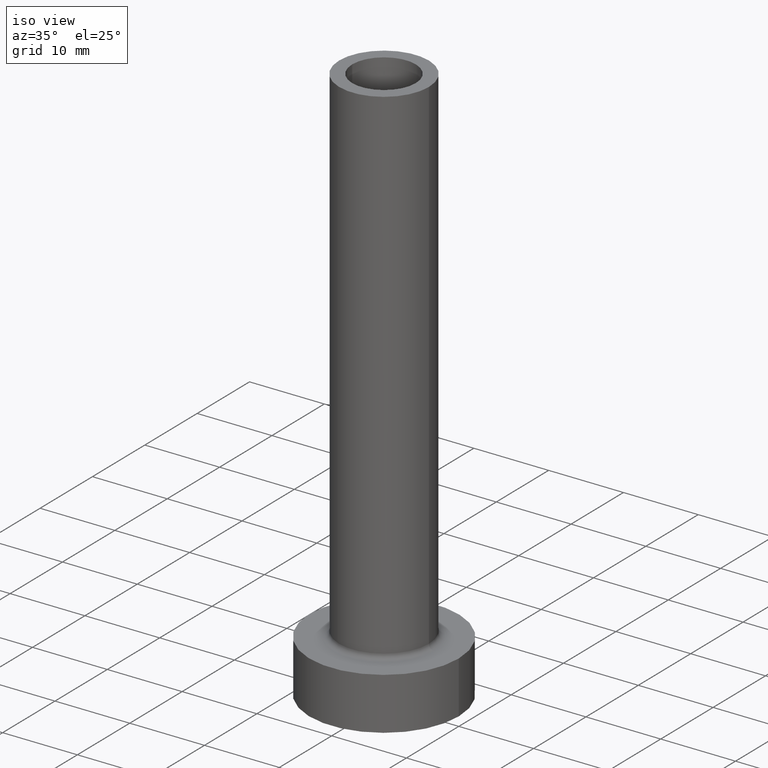
[diagram: clean part render]
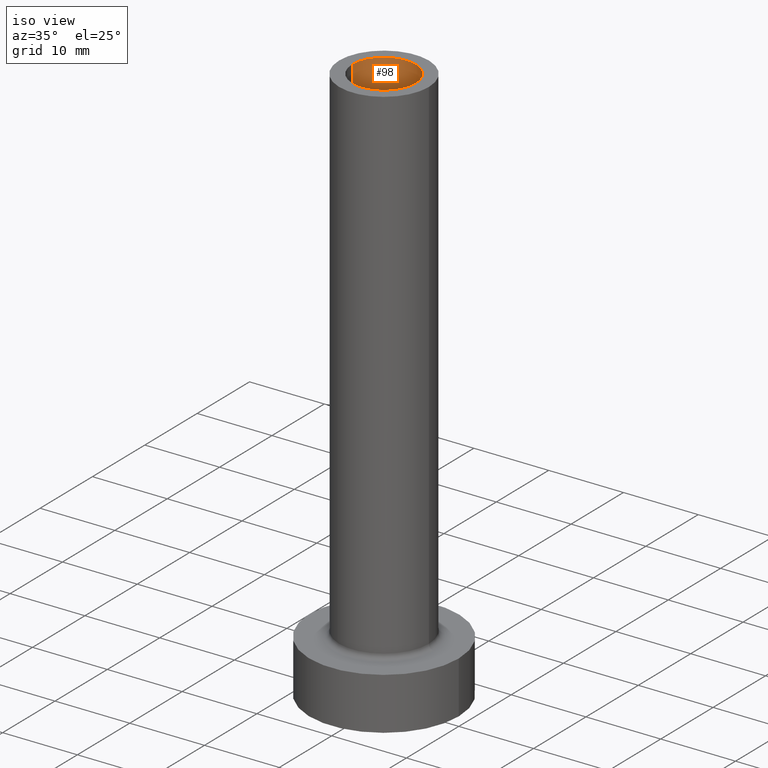
[diagram: same view with one face highlighted and labeled with its STEP entity id]
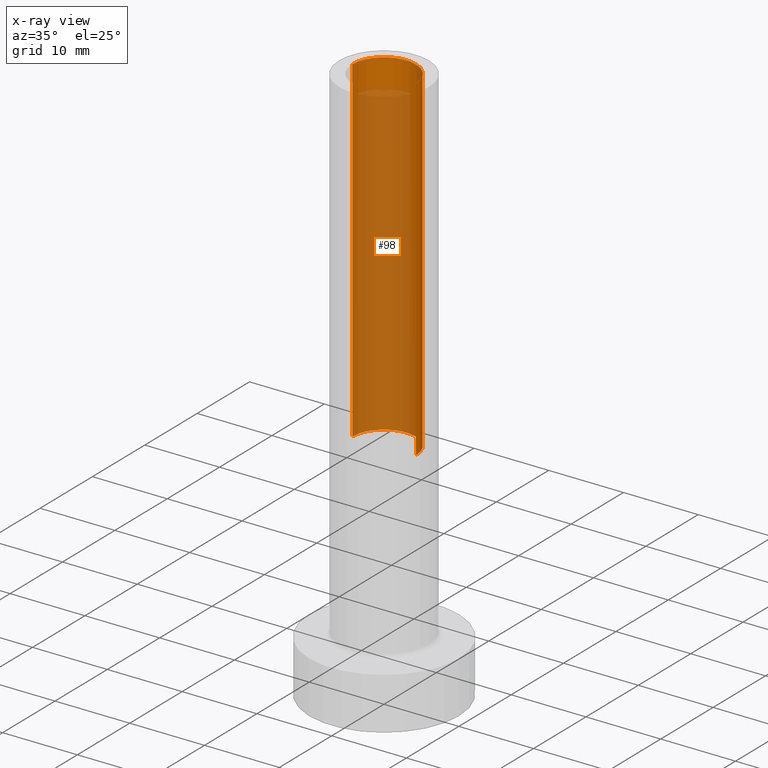
[diagram: x-ray of the same camera — body ghosted, the highlighted face saturated]
A machine part, iso view. The second image highlights one B-rep face of the part: STEP entity #98.
The next image is the same camera in x-ray: the body ghosted, the highlighted face saturated — about 74% of this face is hidden behind the body in this view.
In plain terms, the highlighted cylindrical surface (partial cylindrical patch) has radius 4.25 mm, axis along (0, 0, -1).
Its self-contained STEP definition (entity closure, byte-faithful):
#18 = CYLINDRICAL_SURFACE ( 'NONE', #247, 4.250000000000000000 ) ;
#48 = CARTESIAN_POINT ( 'NONE',  ( 4.250000000000000000, 5.204748896376249713E-16, 30.00000000000001421 ) ) ;
#50 = CIRCLE ( 'NONE', #159, 4.250000000000000000 ) ;
#51 = LINE ( 'NONE', #196, #449 ) ;
#59 = CIRCLE ( 'NONE', #194, 4.250000000000000000 ) ;
#71 = ORIENTED_EDGE ( 'NONE', *, *, #357, .F. ) ;
#98 = ADVANCED_FACE ( 'NONE', ( #204 ), #18, .F. ) ;
#99 = CARTESIAN_POINT ( 'NONE',  ( 0.000000000000000000, 0.000000000000000000, 75.00000000000001421 ) ) ;
#101 = VECTOR ( 'NONE', #211, 1000.000000000000000 ) ;
#117 = CARTESIAN_POINT ( 'NONE',  ( 4.250000000000000000, 5.204748896376249713E-16, 75.00000000000001421 ) ) ;
#120 = VERTEX_POINT ( 'NONE', #375 ) ;
#126 = DIRECTION ( 'NONE',  ( 0.000000000000000000, 0.000000000000000000, -1.000000000000000000 ) ) ;
#141 = VERTEX_POINT ( 'NONE', #226 ) ;
#152 = EDGE_LOOP ( 'NONE', ( #268, #388, #440, #71 ) ) ;
#159 = AXIS2_PLACEMENT_3D ( 'NONE', #254, #359, #185 ) ;
#163 = DIRECTION ( 'NONE',  ( 0.000000000000000000, 0.000000000000000000, -1.000000000000000000 ) ) ;
#169 = CARTESIAN_POINT ( 'NONE',  ( 0.000000000000000000, 0.000000000000000000, 75.00000000000001421 ) ) ;
#177 = EDGE_CURVE ( 'NONE', #262, #186, #51, .T. ) ;
#185 = DIRECTION ( 'NONE',  ( 1.000000000000000000, 0.000000000000000000, 0.000000000000000000 ) ) ;
#186 = VERTEX_POINT ( 'NONE', #48 ) ;
#194 = AXIS2_PLACEMENT_3D ( 'NONE', #99, #376, #229 ) ;
#196 = CARTESIAN_POINT ( 'NONE',  ( 4.250000000000000000, 5.204748896376249713E-16, 75.00000000000001421 ) ) ;
#204 = FACE_OUTER_BOUND ( 'NONE', #152, .T. ) ;
#211 = DIRECTION ( 'NONE',  ( 0.000000000000000000, 0.000000000000000000, -1.000000000000000000 ) ) ;
#226 = CARTESIAN_POINT ( 'NONE',  ( -4.250000000000000000, 0.000000000000000000, 30.00000000000001421 ) ) ;
#229 = DIRECTION ( 'NONE',  ( 1.000000000000000000, 0.000000000000000000, 0.000000000000000000 ) ) ;
#238 = DIRECTION ( 'NONE',  ( -1.000000000000000000, 0.000000000000000000, 0.000000000000000000 ) ) ;
#247 = AXIS2_PLACEMENT_3D ( 'NONE', #169, #126, #238 ) ;
#254 = CARTESIAN_POINT ( 'NONE',  ( 0.000000000000000000, 0.000000000000000000, 30.00000000000001421 ) ) ;
#262 = VERTEX_POINT ( 'NONE', #117 ) ;
#268 = ORIENTED_EDGE ( 'NONE', *, *, #177, .F. ) ;
#357 = EDGE_CURVE ( 'NONE', #186, #141, #50, .T. ) ;
#359 = DIRECTION ( 'NONE',  ( 0.000000000000000000, 0.000000000000000000, 1.000000000000000000 ) ) ;
#375 = CARTESIAN_POINT ( 'NONE',  ( -4.250000000000000000, 0.000000000000000000, 75.00000000000001421 ) ) ;
#376 = DIRECTION ( 'NONE',  ( 0.000000000000000000, 0.000000000000000000, 1.000000000000000000 ) ) ;
#388 = ORIENTED_EDGE ( 'NONE', *, *, #394, .T. ) ;
#394 = EDGE_CURVE ( 'NONE', #262, #120, #59, .T. ) ;
#413 = CARTESIAN_POINT ( 'NONE',  ( -4.250000000000000000, 0.000000000000000000, 75.00000000000001421 ) ) ;
#440 = ORIENTED_EDGE ( 'NONE', *, *, #452, .T. ) ;
#449 = VECTOR ( 'NONE', #163, 1000.000000000000000 ) ;
#452 = EDGE_CURVE ( 'NONE', #120, #141, #454, .T. ) ;
#454 = LINE ( 'NONE', #413, #101 ) ;